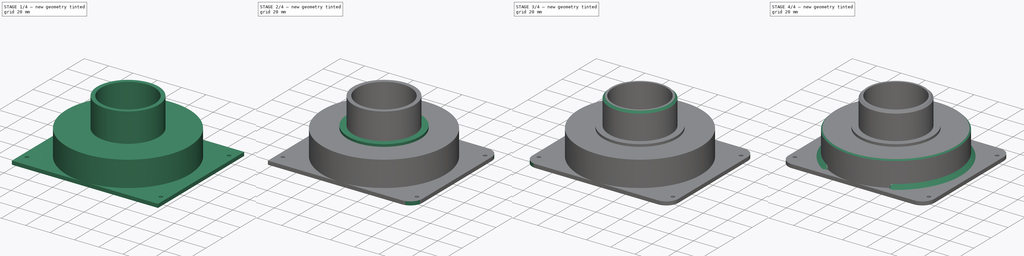
[diagram: build sequence overview — one tinted view per stage of 4, left to right]
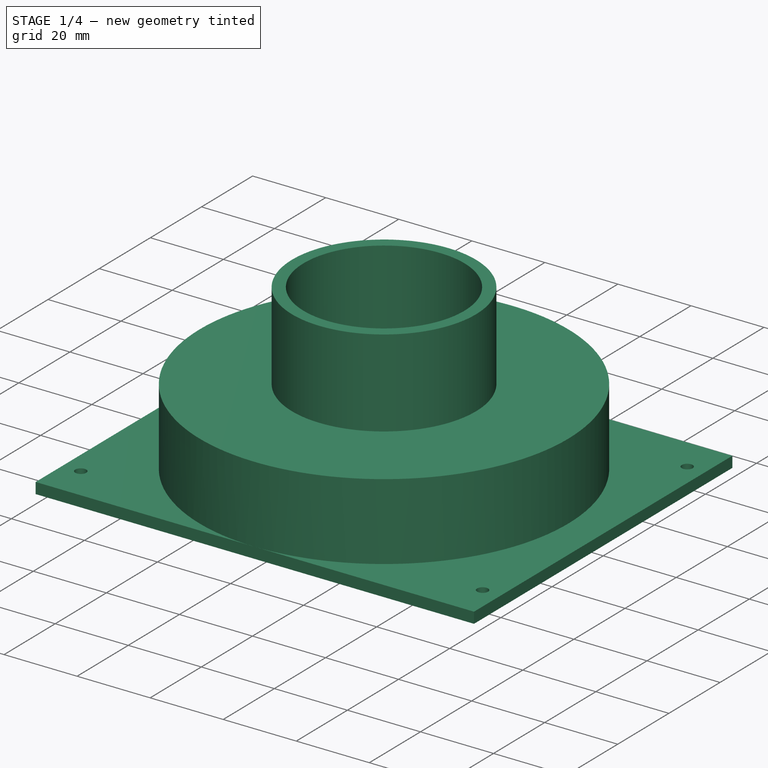
[diagram: stage 1 of 4 — iso view after this stage's code; geometry added in this stage tinted green]
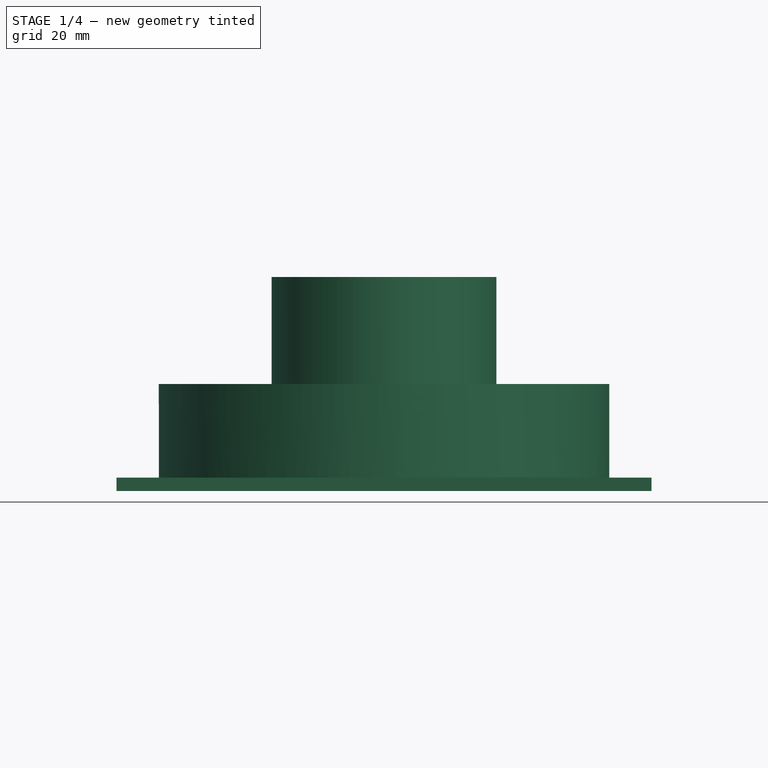
[diagram: stage 1 of 4 — front view after this stage's code; geometry added in this stage tinted green]
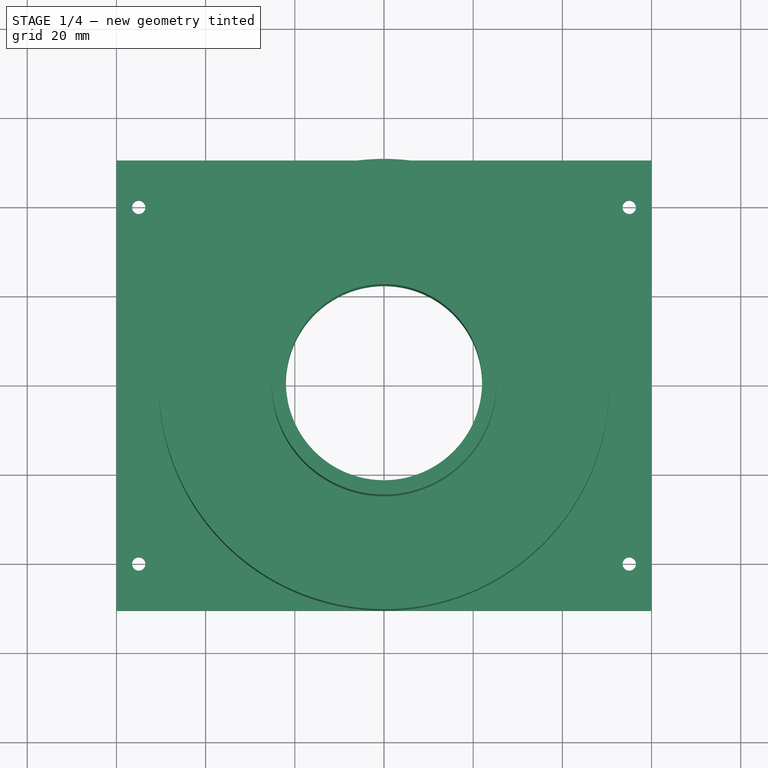
[diagram: stage 1 of 4 — top view after this stage's code; geometry added in this stage tinted green]
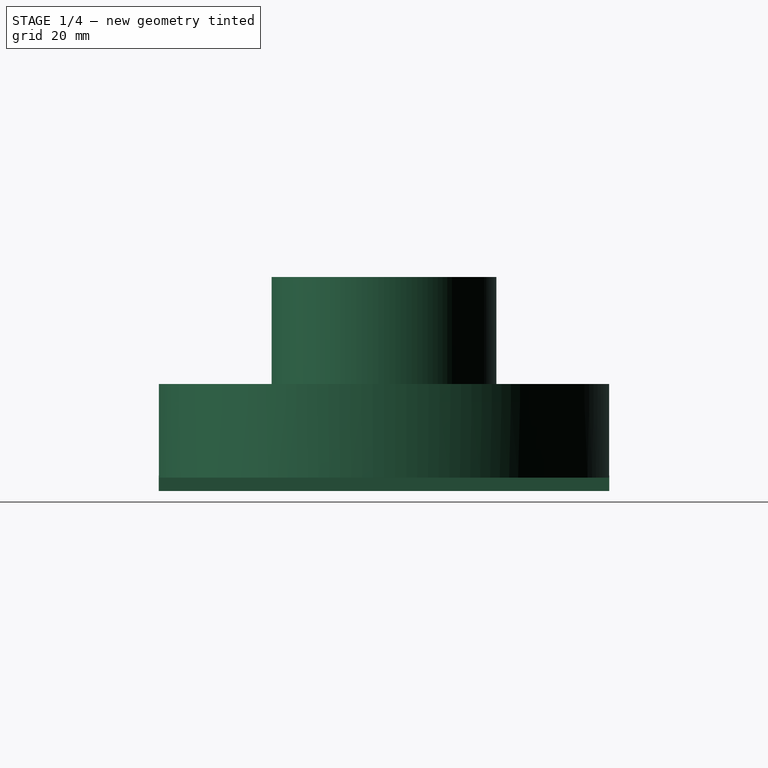
[diagram: stage 1 of 4 — right view after this stage's code; geometry added in this stage tinted green]
FCSTD DOCUMENT  (FreeCAD 0.19R24276 (Git))
Label: Opora_for_gear
License: All rights reserved
LicenseURL: http://en.wikipedia.org/wiki/All_rights_reserved
objects: Sketcher::SketchObject×8, PartDesign::Pad×5, PartDesign::Fillet×5, PartDesign::Chamfer×2, PartDesign::Revolution×2, PartDesign::Body×1
note: 37 computed .brp shape members not serialized (recipe doc carries the construction recipe); baked Part::Feature solids carry a one-line shape summary decoded from their .brp

FEATURE [Sketcher::SketchObject] Sketch  label="Sketch_120x101_d95"
  FullyConstrained = true
  MapMode = 5
  Support = -> [XY_Plane]
  sketch-geometry (18):
    g0: LineSegment StartX=-55 StartY=50 StartZ=0 EndX=55 EndY=50 EndZ=0
    g1: LineSegment StartX=55 StartY=50 StartZ=0 EndX=55 EndY=-50 EndZ=0
    g2: LineSegment StartX=55 StartY=-50 StartZ=0 EndX=-55 EndY=-50 EndZ=0
    g3: LineSegment StartX=-55 StartY=-50 StartZ=0 EndX=-55 EndY=50 EndZ=0
    g4: Circle CenterX=-55 CenterY=50 CenterZ=0 NormalX=0 NormalY=0 NormalZ=1 AngleXU=0 Radius=1.5
    g5: Circle CenterX=-55 CenterY=-50 CenterZ=0 NormalX=0 NormalY=0 NormalZ=1 AngleXU=0 Radius=1.5
    g6: Circle CenterX=55 CenterY=50 CenterZ=0 NormalX=0 NormalY=0 NormalZ=1 AngleXU=0 Radius=1.5
    g7: Circle CenterX=55 CenterY=-50 CenterZ=0 NormalX=0 NormalY=0 NormalZ=1 AngleXU=0 Radius=1.5
    g8: LineSegment StartX=-100 StartY=65 StartZ=0 EndX=100 EndY=65 EndZ=0
    g9: LineSegment StartX=100 StartY=65 StartZ=0 EndX=100 EndY=-65 EndZ=0
    g10: LineSegment StartX=100 StartY=-65 StartZ=0 EndX=-100 EndY=-65 EndZ=0
    g11: LineSegment StartX=-100 StartY=-65 StartZ=0 EndX=-100 EndY=65 EndZ=0
    g12: Circle CenterX=0 CenterY=0 CenterZ=0 NormalX=0 NormalY=0 NormalZ=1 AngleXU=0 Radius=45
    g13: Circle CenterX=0 CenterY=0 CenterZ=0 NormalX=0 NormalY=0 NormalZ=1 AngleXU=0 Radius=47.5
    g14: LineSegment StartX=-60 StartY=55 StartZ=0 EndX=60 EndY=55 EndZ=0
    g15: LineSegment StartX=60 StartY=55 StartZ=0 EndX=60 EndY=-55 EndZ=0
    g16: LineSegment StartX=60 StartY=-55 StartZ=0 EndX=-60 EndY=-55 EndZ=0
    g17: LineSegment StartX=-60 StartY=-55 StartZ=0 EndX=-60 EndY=55 EndZ=0
  constraints (45):
    c: Coincident(g0,g1)
    c: Coincident(g1,g2)
    c: Coincident(g2,g3)
    c: Coincident(g3,g0)
    c: Horizontal(g0)
    c: Horizontal(g2)
    c: Vertical(g1)
    c: Vertical(g3)
    c: DistanceX(g2,g2) = 110
    c: Symmetric(g2,g0,g-1)
    c: DistanceY(g1,g1) = 100
    c: Coincident(g4,g0)
    c: Coincident(g5,g2)
    c: Coincident(g6,g0)
    c: Coincident(g7,g1)
    c: Diameter(g4) = 3
    c: Equal(g4,g6)
    c: Equal(g4,g7)
    c: Equal(g4,g5)
    c: Coincident(g8,g9)
    c: Coincident(g9,g10)
    c: Coincident(g10,g11)
    c: Coincident(g11,g8)
    c: Horizontal(g8)
    c: Horizontal(g10)
    c: Vertical(g9)
    c: Vertical(g11)
    c: Symmetric(g10,g8,g-1)
    c: DistanceY(g9,g9) = 130
    c: DistanceX(g8,g8) = 200
    c: Coincident(g12,g-1)
    c: Diameter(g12) = 90
    c: Coincident(g13,g-1)
    c: Diameter(g13) = 95
    c: Coincident(g14,g15)
    c: Coincident(g15,g16)
    c: Coincident(g16,g17)
    c: Coincident(g17,g14)
    c: Horizontal(g14)
    c: Horizontal(g16)
    c: Vertical(g15)
    c: Vertical(g17)
    c: Symmetric(g16,g14,g13)
    c: DistanceX(g16,g16) = 120
    c: DistanceY(g15,g15) = 110
FEATURE [PartDesign::Pad] Pad  label="Pad_h3"
  Direction = (1,1,1)
  Length = 3
  Length2 = 100
  Profile = -> Sketch
  Type = 0
FEATURE [Sketcher::SketchObject] Sketch001  label="Sketch001_d95_d101"
  FullyConstrained = true
  MapMode = 5
  Placement = pos=(0,0,3) rot=(0,0,1;0rad)
  Support = -> [Pad]
  sketch-geometry (2):
    g0: Circle CenterX=0 CenterY=0 CenterZ=0 NormalX=0 NormalY=0 NormalZ=1 AngleXU=0 Radius=47.5
    g1: Circle CenterX=0 CenterY=0 CenterZ=0 NormalX=0 NormalY=0 NormalZ=1 AngleXU=0 Radius=50.5
  constraints (4):
    c: Coincident(g0,g-1)
    c: Coincident(g1,g0)
    c: Diameter(g0) = 95
    c: Diameter(g1) = 101
FEATURE [PartDesign::Pad] Pad001  label="Pad001_h17"
  BaseFeature = -> Pad
  Direction = (1,1,1)
  Length = 17
  Length2 = 100
  Profile = -> Sketch001
  Type = 0
FEATURE [Sketcher::SketchObject] Sketch002  label="Sketch002_d44_d101"
  FullyConstrained = true
  MapMode = 5
  Placement = pos=(0,0,20) rot=(0,0,1;0rad)
  Support = -> [Pad001]
  sketch-geometry (2):
    g0: Circle CenterX=0 CenterY=0 CenterZ=0 NormalX=0 NormalY=0 NormalZ=1 AngleXU=0 Radius=50.5
    g1: Circle CenterX=0 CenterY=0 CenterZ=0 NormalX=0 NormalY=0 NormalZ=1 AngleXU=0 Radius=22
  constraints (4):
    c: Coincident(g0,g-1)
    c: Coincident(g1,g0)
    c: Diameter(g0) = 101
    c: Diameter(g1) = 44
FEATURE [PartDesign::Pad] Pad002  label="Pad002_h4"
  BaseFeature = -> Pad001
  Direction = (1,1,1)
  Length = 4
  Length2 = 100
  Profile = -> Sketch002
  Type = 0
FEATURE [Sketcher::SketchObject] Sketch003  label="Sketch003_d44_d50,4"
  FullyConstrained = true
  MapMode = 5
  Placement = pos=(0,0,24) rot=(0,0,1;0rad)
  Support = -> [Pad002]
  sketch-geometry (2):
    g0: Circle CenterX=0 CenterY=0 CenterZ=0 NormalX=0 NormalY=0 NormalZ=1 AngleXU=0 Radius=22
    g1: Circle CenterX=0 CenterY=0 CenterZ=0 NormalX=0 NormalY=0 NormalZ=1 AngleXU=0 Radius=25.2
  constraints (4):
    c: Coincident(g0,g-1)
    c: Coincident(g1,g0)
    c: Diameter(g1) = 50.4
    c: Diameter(g0) = 44
FEATURE [PartDesign::Pad] Pad003  label="Pad003_h24"
  BaseFeature = -> Pad002
  Direction = (1,1,1)
  Length = 24
  Length2 = 100
  Profile = -> Sketch003
  Type = 0
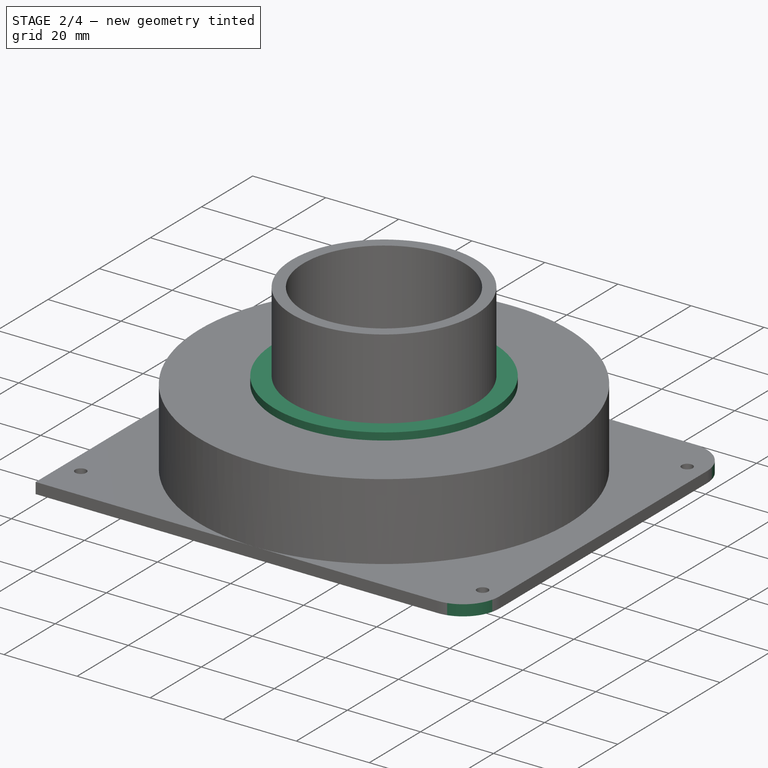
[diagram: stage 2 of 4 — iso view after this stage's code; geometry added in this stage tinted green]
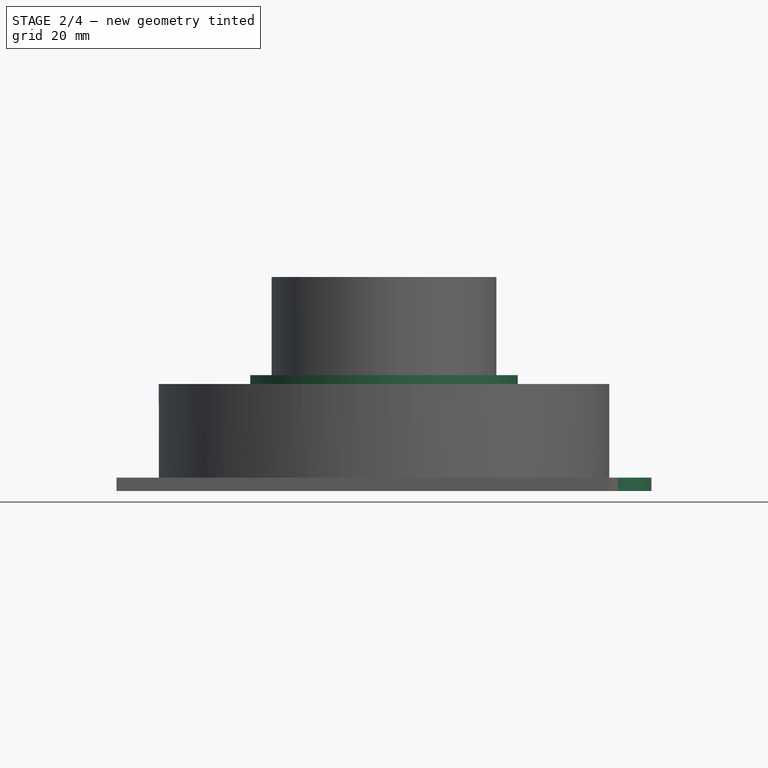
[diagram: stage 2 of 4 — front view after this stage's code; geometry added in this stage tinted green]
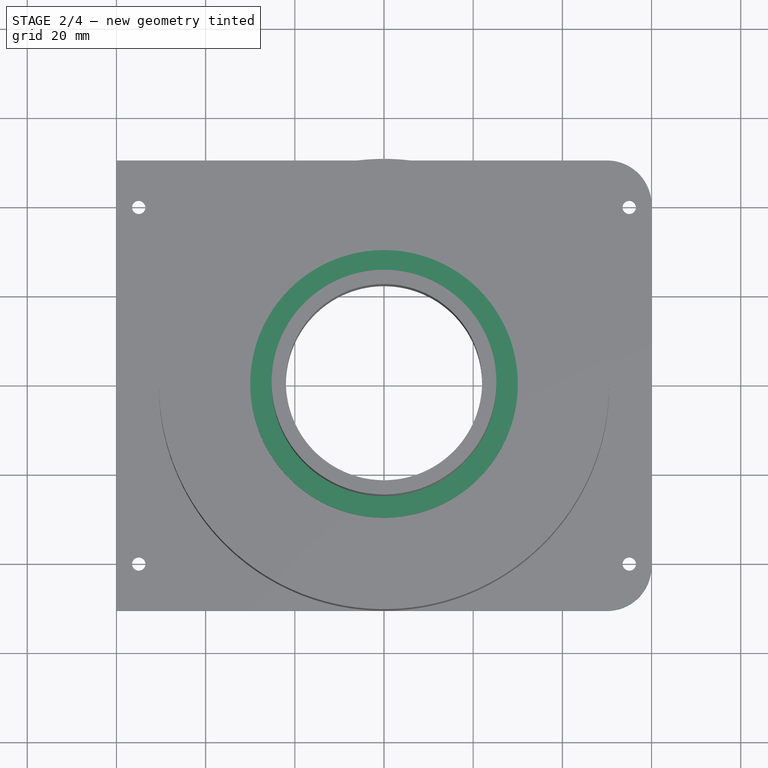
[diagram: stage 2 of 4 — top view after this stage's code; geometry added in this stage tinted green]
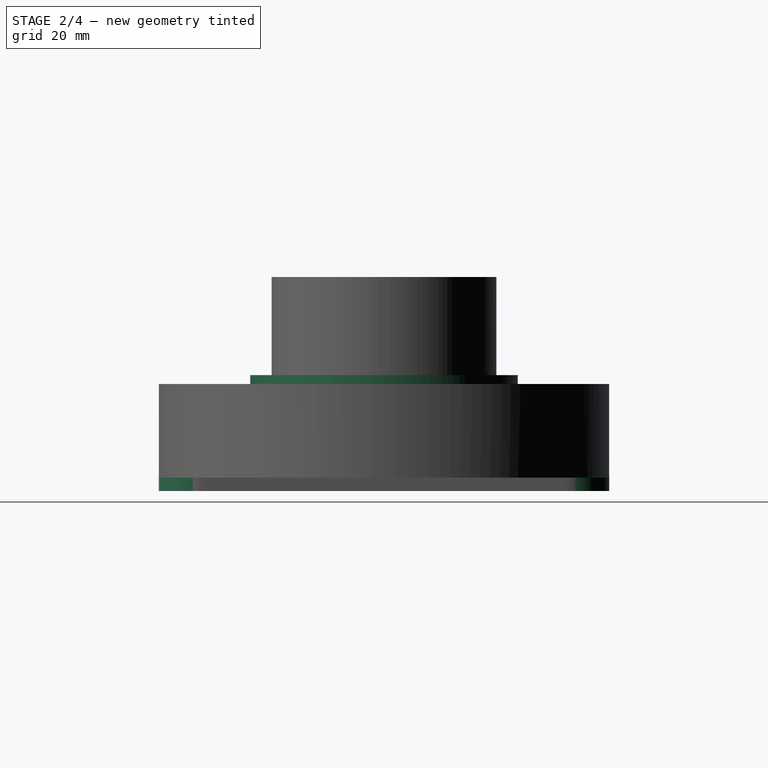
[diagram: stage 2 of 4 — right view after this stage's code; geometry added in this stage tinted green]
FEATURE [Sketcher::SketchObject] Sketch004  label="Sketch004_d50,4_d60"
  FullyConstrained = true
  MapMode = 5
  Placement = pos=(0,0,24) rot=(0,0,1;0rad)
  Support = -> [Pad003]
  sketch-geometry (2):
    g0: Circle CenterX=0 CenterY=0 CenterZ=0 NormalX=0 NormalY=0 NormalZ=1 AngleXU=0 Radius=25.2
    g1: Circle CenterX=0 CenterY=0 CenterZ=0 NormalX=0 NormalY=0 NormalZ=1 AngleXU=0 Radius=30
  constraints (4):
    c: Coincident(g0,g-1)
    c: Coincident(g1,g0)
    c: Diameter(g0) = 50.4
    c: Diameter(g1) = 60
FEATURE [PartDesign::Pad] Pad004  label="Pad004_h2"
  BaseFeature = -> Pad003
  Direction = (1,1,1)
  Length = 2
  Length2 = 100
  Profile = -> Sketch004
  Type = 0
FEATURE [PartDesign::Fillet] Fillet
  Base = -> Pad004 [Edge9]
  BaseFeature = -> Pad004
  Radius = 10
  SupportTransform = false
FEATURE [PartDesign::Fillet] Fillet001
  Base = -> Fillet [Edge3]
  BaseFeature = -> Fillet
  Radius = 10
  SupportTransform = false
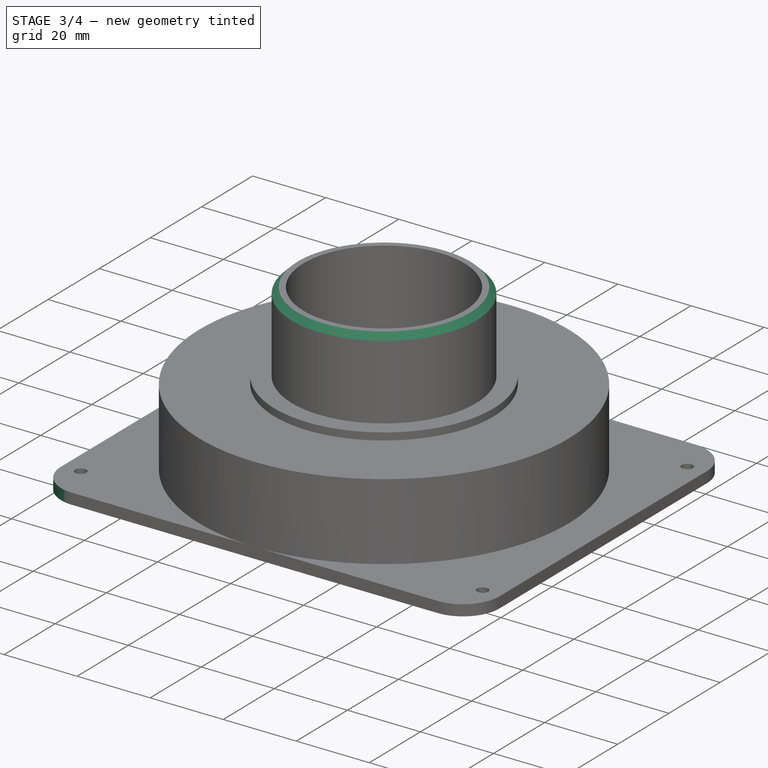
[diagram: stage 3 of 4 — iso view after this stage's code; geometry added in this stage tinted green]
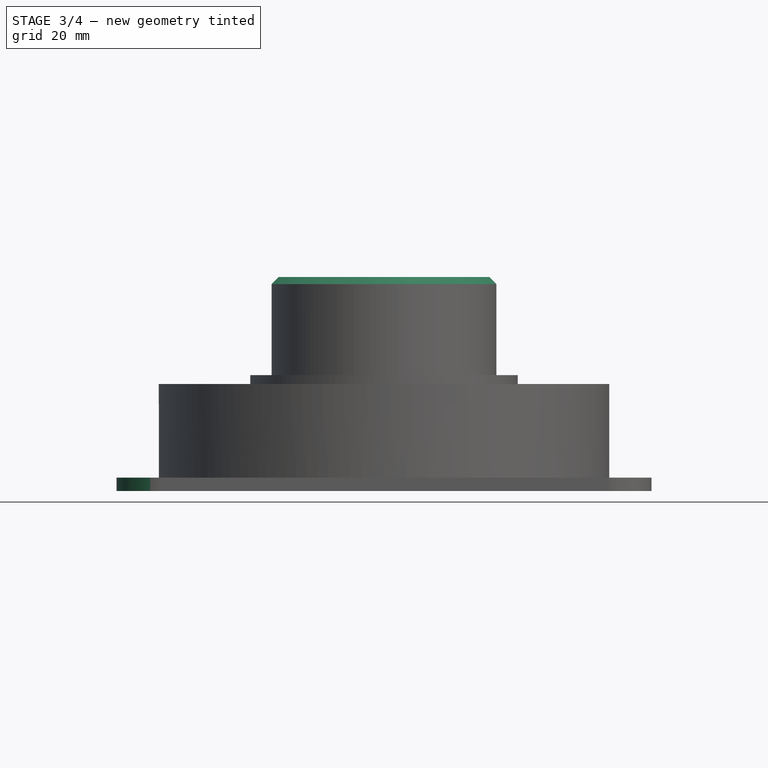
[diagram: stage 3 of 4 — front view after this stage's code; geometry added in this stage tinted green]
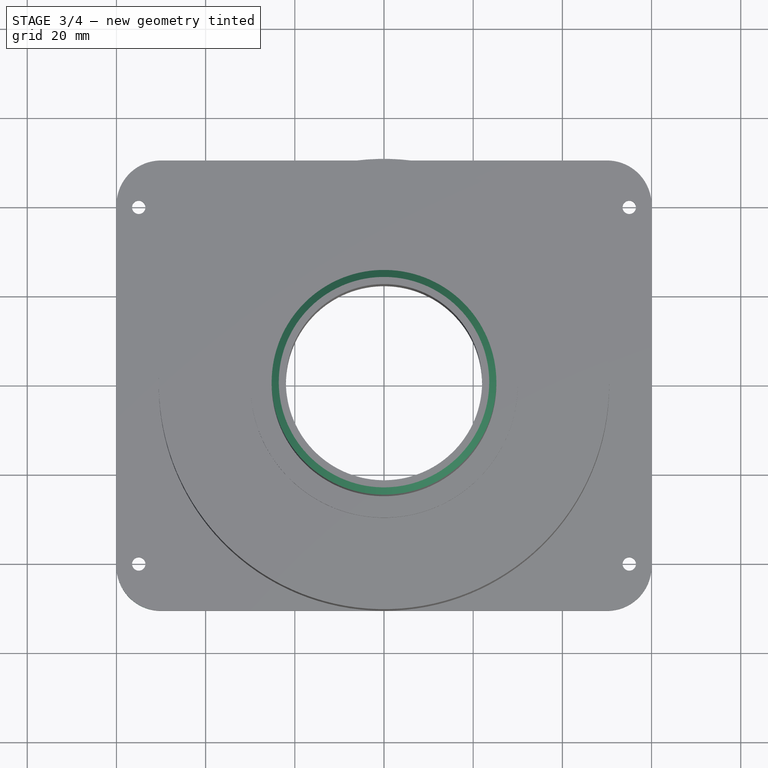
[diagram: stage 3 of 4 — top view after this stage's code; geometry added in this stage tinted green]
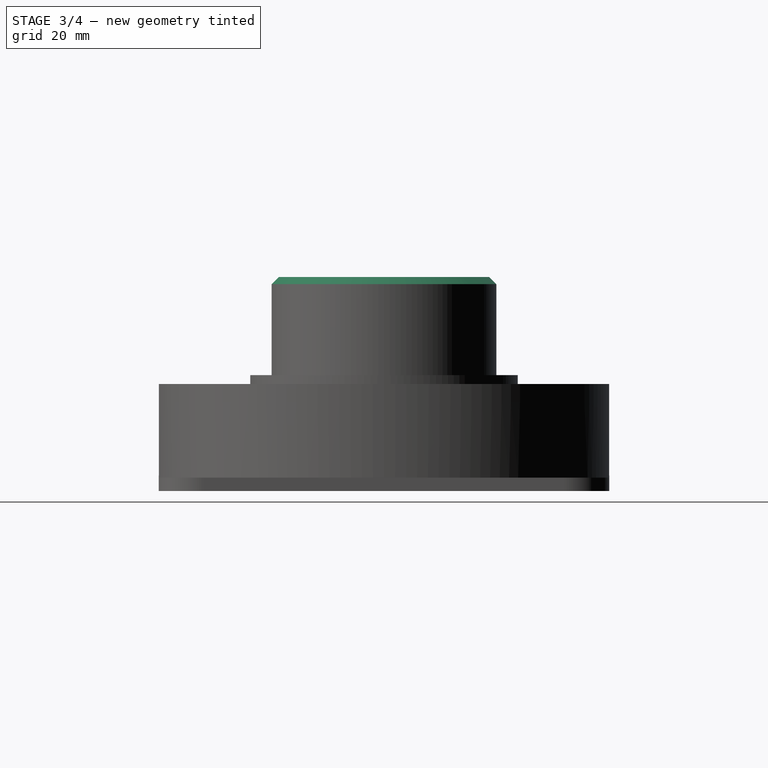
[diagram: stage 3 of 4 — right view after this stage's code; geometry added in this stage tinted green]
FEATURE [PartDesign::Fillet] Fillet002
  Base = -> Fillet001 [Edge25,Edge27]
  BaseFeature = -> Fillet001
  Radius = 10
  SupportTransform = false
FEATURE [PartDesign::Chamfer] Chamfer
  Angle = 45
  Base = -> Fillet002 [Edge59]
  BaseFeature = -> Fillet002
  ChamferType = 0
  FlipDirection = false
  Size = 1.6
  Size2 = 1
  SupportTransform = false
FEATURE [Sketcher::SketchObject] Sketch005  label="Sketch005_3x3"
  FullyConstrained = true
  MapMode = 5
  Placement = pos=(0,0,0) rot=(1,0,0;1.5708rad)
  Support = -> [XZ_Plane]
  sketch-geometry (3):
    g0: LineSegment StartX=47.5 StartY=20 StartZ=0 EndX=47.5 EndY=17 EndZ=0
    g1: LineSegment StartX=47.5 StartY=17 StartZ=0 EndX=44.5 EndY=20 EndZ=0
    g2: LineSegment StartX=44.5 StartY=20 StartZ=0 EndX=47.5 EndY=20 EndZ=0
  constraints (9):
    c: Vertical(g0)
    c: Coincident(g1,g0)
    c: Coincident(g2,g1)
    c: Coincident(g2,g0)
    c: Horizontal(g2)
    c: DistanceX(g-1,g0) = 47.5
    c: DistanceY(g-1,g0) = 20
    c: DistanceY(g0,g0) = 3
    c: DistanceX(g2,g2) = 3
FEATURE [PartDesign::Revolution] Revolution  label="Revolution_in_360"
  Angle = 360
  Axis = (0,2e-16,1)
  Base = (0,0,0)
  BaseFeature = -> Chamfer
  Profile = -> Sketch005
  ReferenceAxis = -> Sketch005 [V_Axis]
  Reversed = true
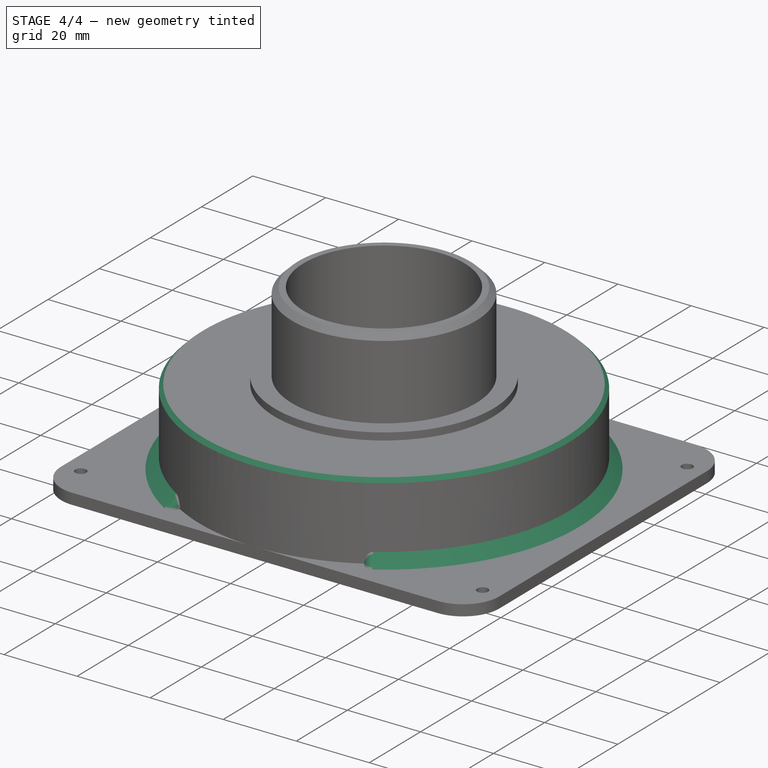
[diagram: stage 4 of 4 — iso view after this stage's code; geometry added in this stage tinted green]
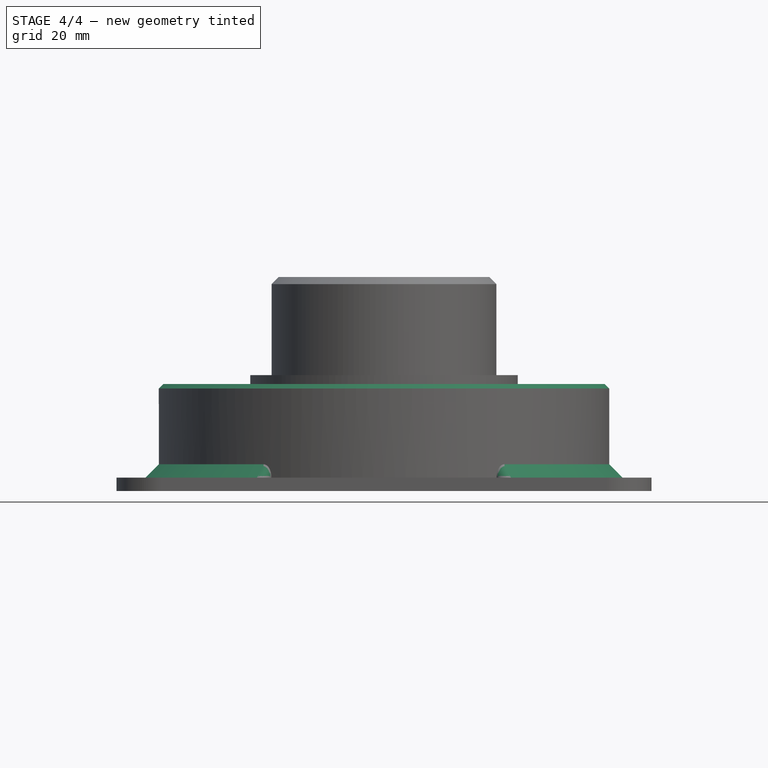
[diagram: stage 4 of 4 — front view after this stage's code; geometry added in this stage tinted green]
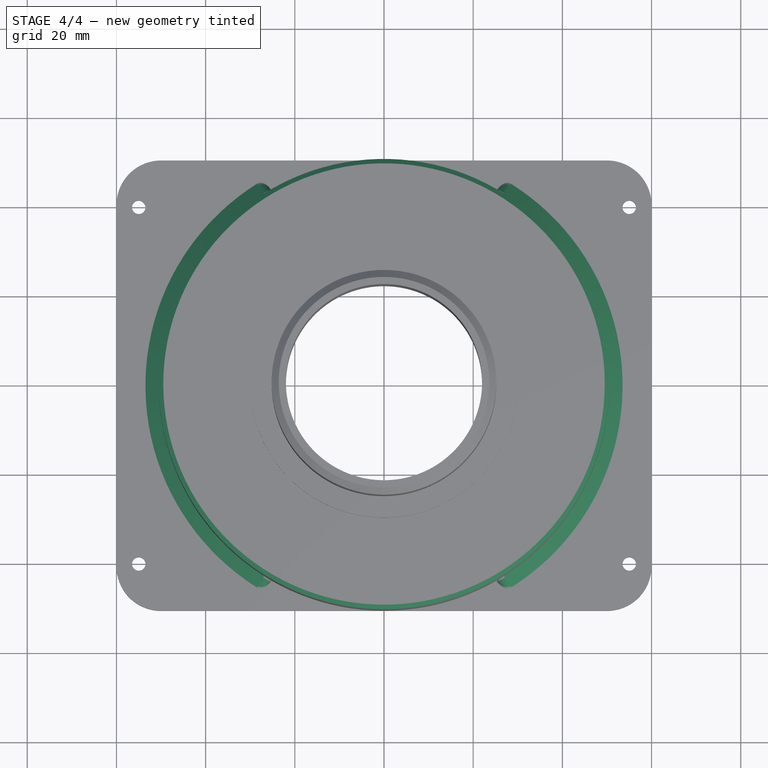
[diagram: stage 4 of 4 — top view after this stage's code; geometry added in this stage tinted green]
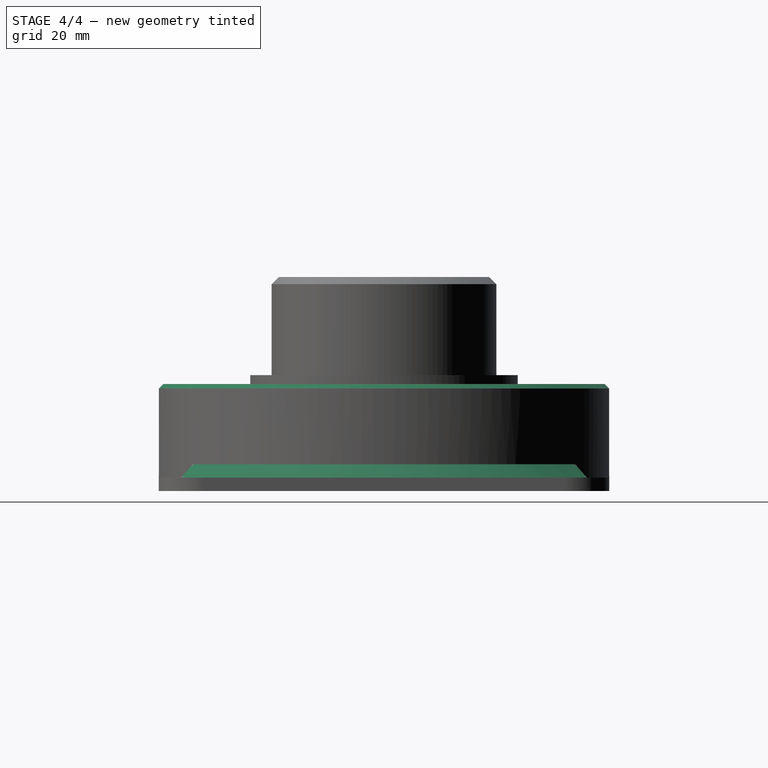
[diagram: stage 4 of 4 — right view after this stage's code; geometry added in this stage tinted green]
FEATURE [PartDesign::Chamfer] Chamfer001
  Angle = 45
  Base = -> Revolution [Edge17]
  BaseFeature = -> Revolution
  ChamferType = 0
  FlipDirection = false
  Size = 1
  Size2 = 1
  SupportTransform = false
FEATURE [Sketcher::SketchObject] Sketch006  label="Sketch006_3x3"
  FullyConstrained = false
  MapMode = 5
  Placement = pos=(0,0,0) rot=(1,0,0;1.5708rad)
  Support = -> [XZ_Plane]
  sketch-geometry (6):
    g0: LineSegment StartX=50.5 StartY=6 StartZ=0 EndX=50.5 EndY=3 EndZ=0
    g1: LineSegment StartX=50.5 StartY=3 StartZ=0 EndX=53.5 EndY=3 EndZ=0
    g2: LineSegment StartX=50.5 StartY=6 StartZ=0 EndX=53.5 EndY=3 EndZ=0
    g3: LineSegment StartX=-50.5 StartY=6 StartZ=0 EndX=-50.5 EndY=3 EndZ=0
    g4: LineSegment StartX=-50.5 StartY=3 StartZ=0 EndX=-53.5 EndY=3 EndZ=0
    g5: LineSegment StartX=-50.5 StartY=6 StartZ=0 EndX=-53.5 EndY=3 EndZ=0
  constraints (14):
    c: Vertical(g0)
    c: Coincident(g1,g0)
    c: Horizontal(g1)
    c: Coincident(g2,g0)
    c: Coincident(g2,g1)
    c: DistanceX(g-1,g0) = 50.5
    c: DistanceY(g-1,g0) = 3
    c: DistanceX(g0,g1) = 3
    c: DistanceY(g0,g0) = 3
    c: Vertical(g3)
    c: Coincident(g4,g3)
    c: Horizontal(g4)
    c: Coincident(g5,g3)
    c: Coincident(g5,g4)
FEATURE [PartDesign::Revolution] Revolution001  label="Revolution001_120degree"
  Angle = 120
  Axis = (0,2e-16,1)
  Base = (0,0,0)
  BaseFeature = -> Chamfer001
  Midplane = true
  Profile = -> Sketch006
  ReferenceAxis = -> Sketch006 [V_Axis]
  Reversed = true
FEATURE [PartDesign::Fillet] Fillet003
  Base = -> Revolution001 [Edge26,Edge46]
  BaseFeature = -> Revolution001
  Radius = 2
  SupportTransform = false
FEATURE [PartDesign::Fillet] Fillet004
  Base = -> Fillet003 [Edge45,Edge18]
  BaseFeature = -> Fillet003
  Radius = 2
  SupportTransform = false
FEATURE [Sketcher::SketchObject] Sketch007
  FullyConstrained = true
  MapMode = 5
  Placement = pos=(0,0,0) rot=(1,0,0;1.5708rad)
  Support = -> [XZ_Plane]
FEATURE [PartDesign::Body] Body
  Group = -> [Sketch,Pad,Sketch001,Pad001,Sketch002,Pad002,Sketch003,Pad003,Sketch004,Pad004,Fillet,Fillet001,Fillet002,Chamfer,Sketch005,Revolution,Chamfer001,Sketch006,Revolution001,Fillet003,Fillet004,Sketch007]
  Origin = -> Origin
  Tip = -> Fillet004
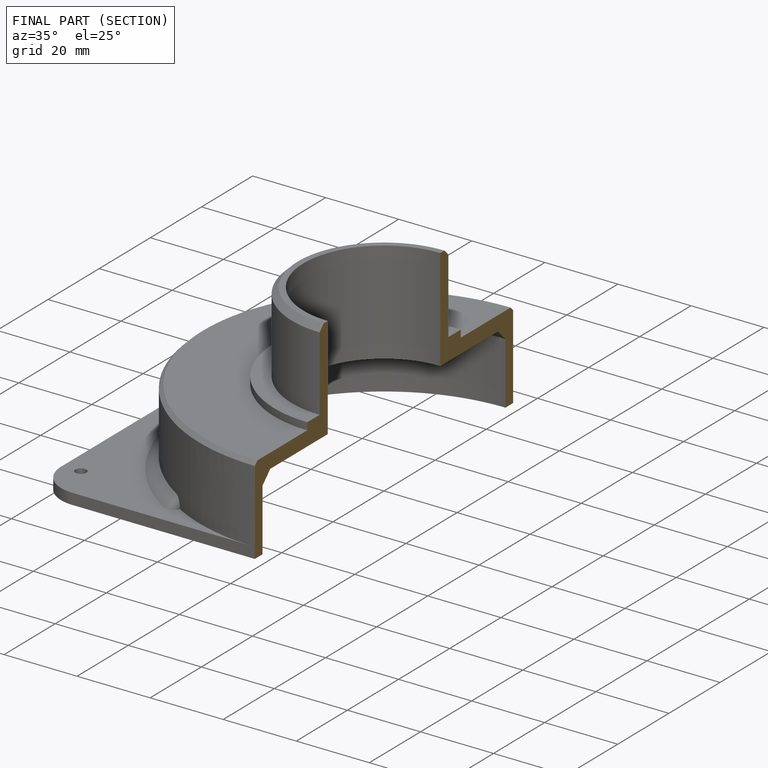
[diagram: finished part — half-section view (interior)]
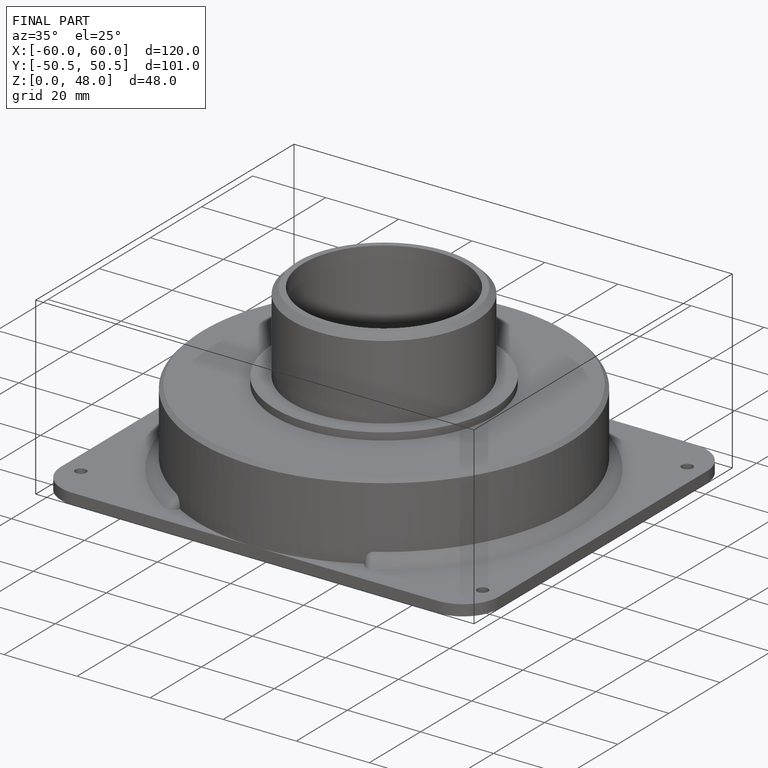
[diagram: finished part — iso view with bounding-box wireframe]
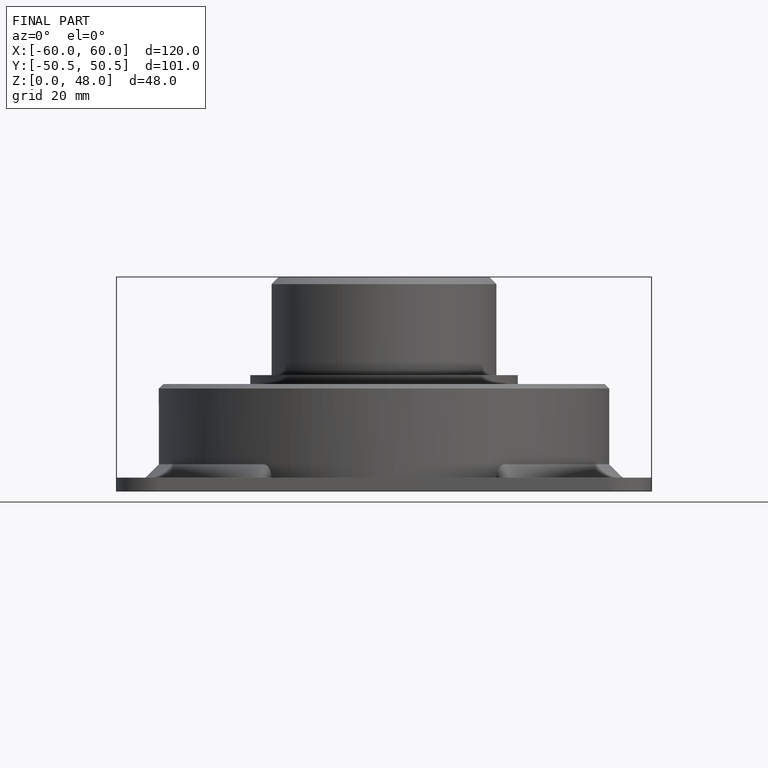
[diagram: finished part — front view with bounding-box wireframe]
